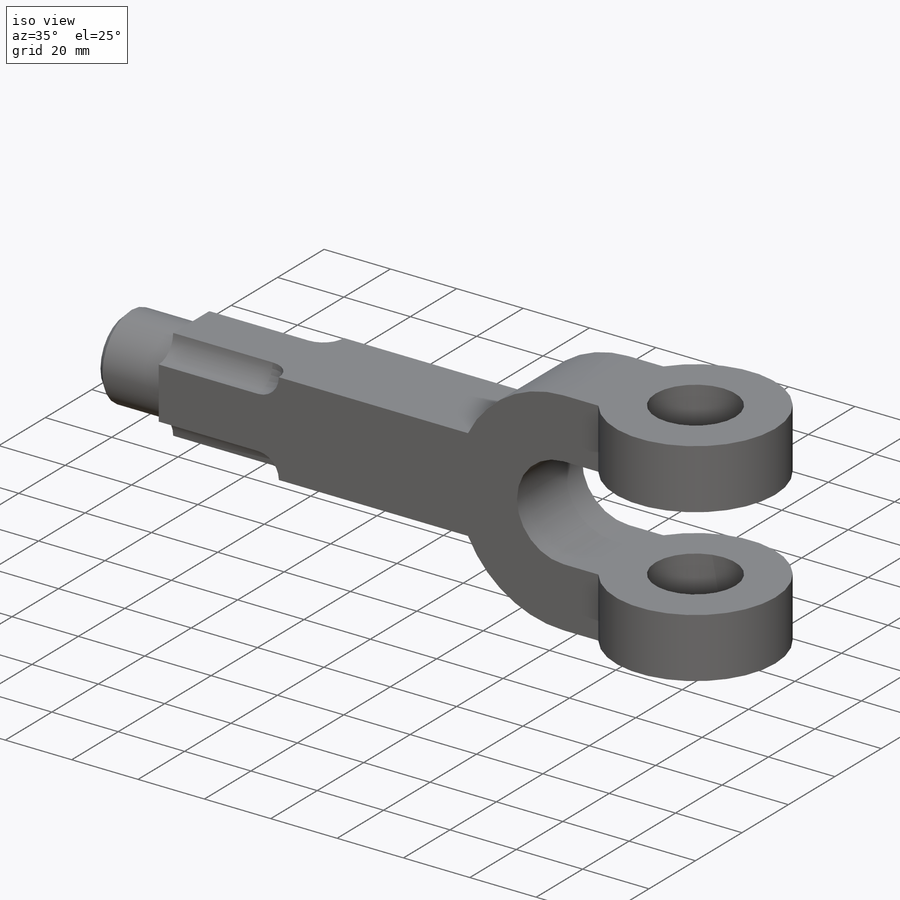
[diagram: iso view]
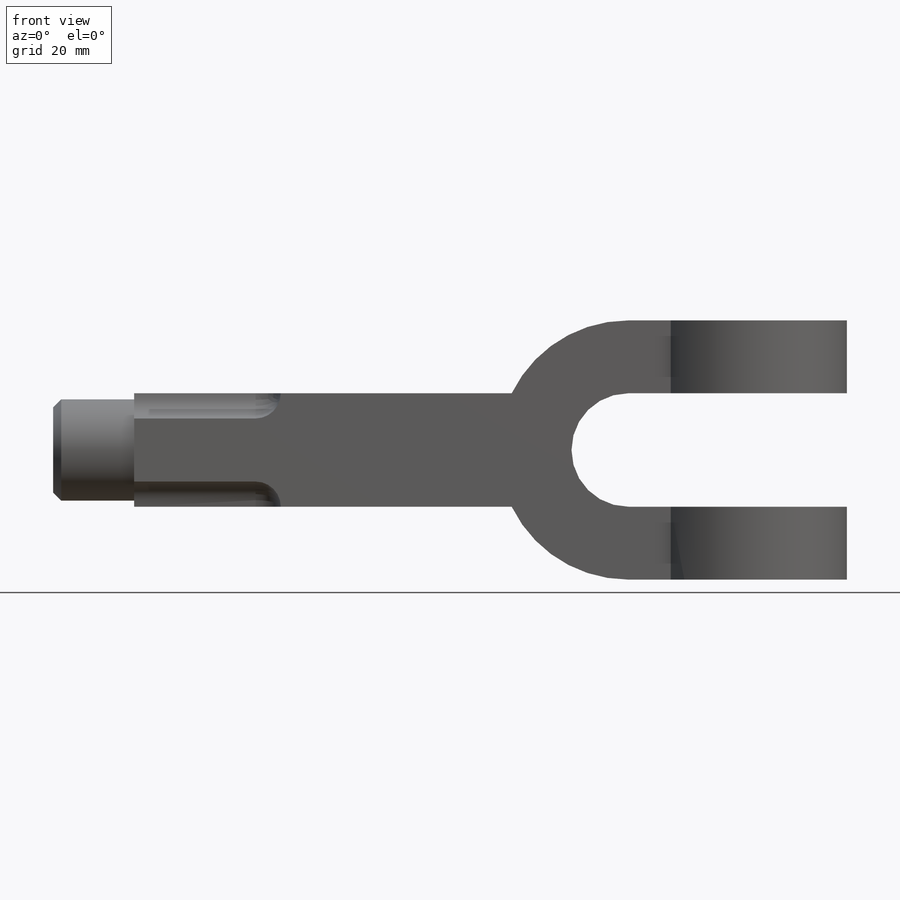
[diagram: front view]
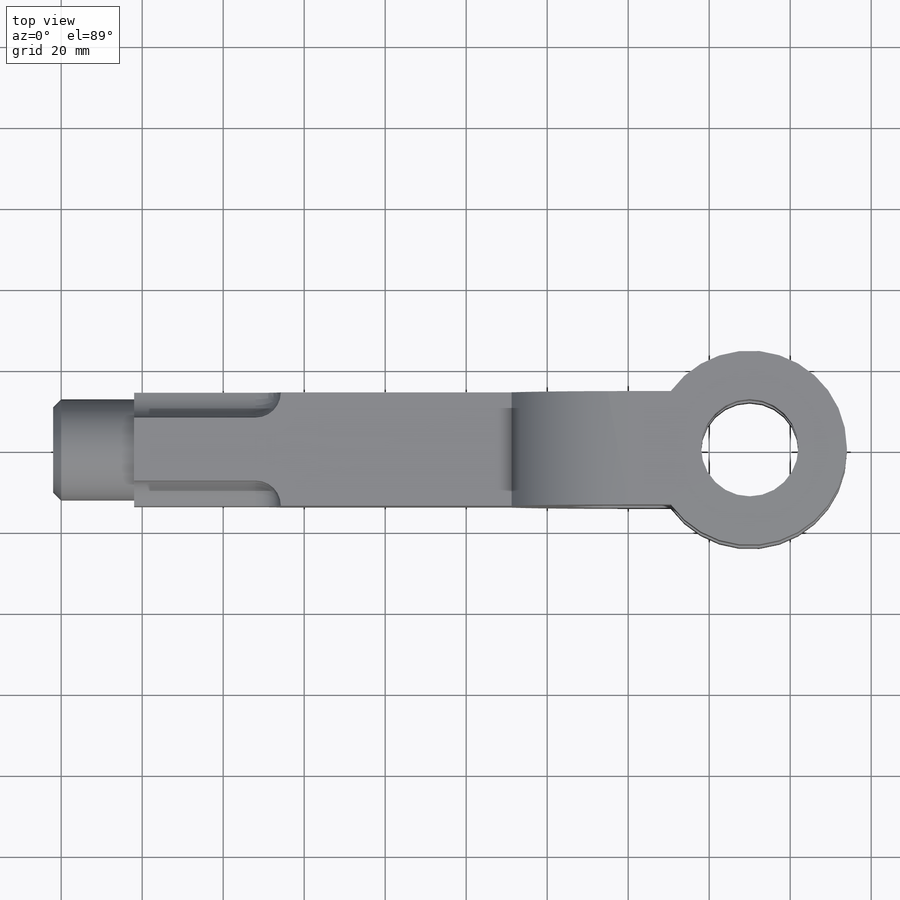
[diagram: top view]
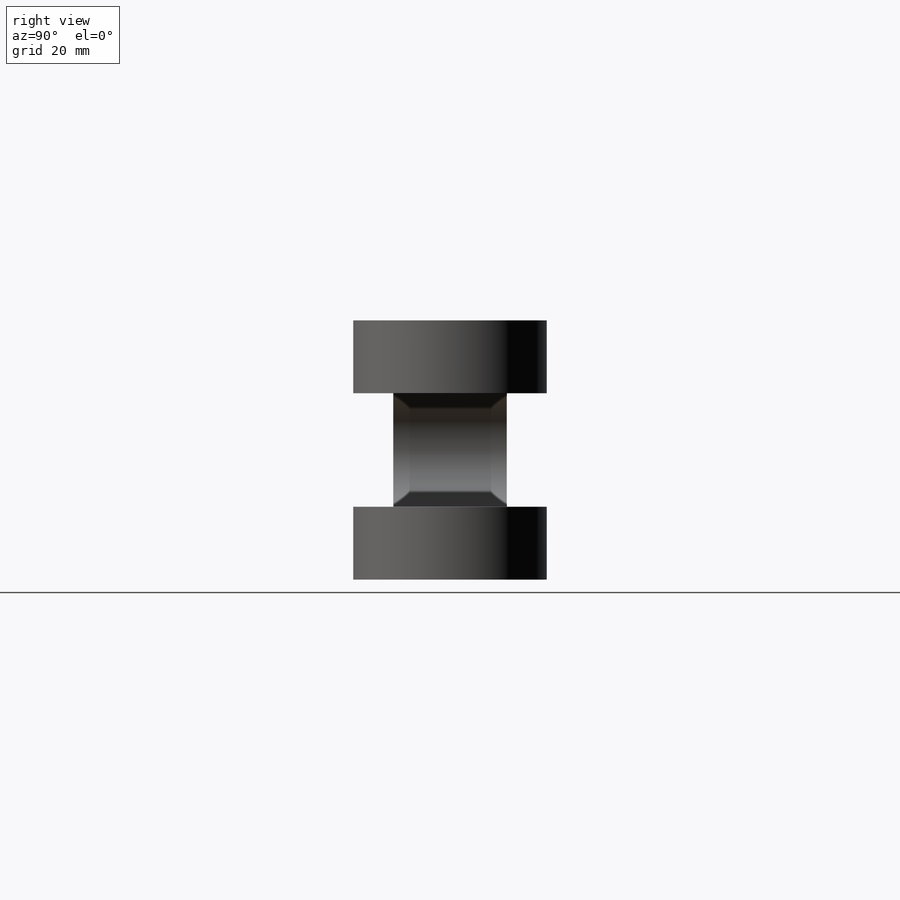
[diagram: right view]
SOLIDWORKS PART (.sldprt)
format: sldprt  version: not decoded by parser v0  size: 209,920 bytes
history: native  units: mm
features: sketch x5, extrude x4, mirror x3, material x1, plane x1, cut_revolve x1, chamfer x1 (+12 scaffold rows collapsed)
feature tree (28):
  scaffold x12  (default folders/planes/origin — collapsed)
  material  "Material <not specified>"
  sketch  "Sketch1"  dims[D1=28.0mm D2=64.0mm D3=18.0mm]
  extrude  "Boss-Extrude1"  Depth=28mm
  sketch  "Sketch2"  dims[D1=48.0mm D2=24.0mm]
  extrude  "Boss-Extrude2"  Depth=18mm
  mirror  "Mirror1"
  plane  "Plane1"  Offset=122mm
  sketch  "Sketch3"  dims[D1=28.0mm D2=28.0mm]
  extrude  "Boss-Extrude3"  [1 undecoded]
  sketch  "Sketch4"  dims[D1=6.22mm D2=0.0mm D3=30.0mm D4=36.22mm]
  cut_revolve  "Cut-Revolve1"  Angle=360deg
  mirror  "Mirror2"
  mirror  "Mirror3"
  sketch  "Sketch5"  dims[D1=25.0mm]
  extrude  "Boss-Extrude4"  Depth=20mm
  chamfer  "Chamfer1"  Distance=2mm Angle=45deg
decode coverage: 10 of 14 modeling features carry decoded parameters
note: 1 parameter value undecoded
note: suppression state not decoded; provenance and decode notes live in map.json
